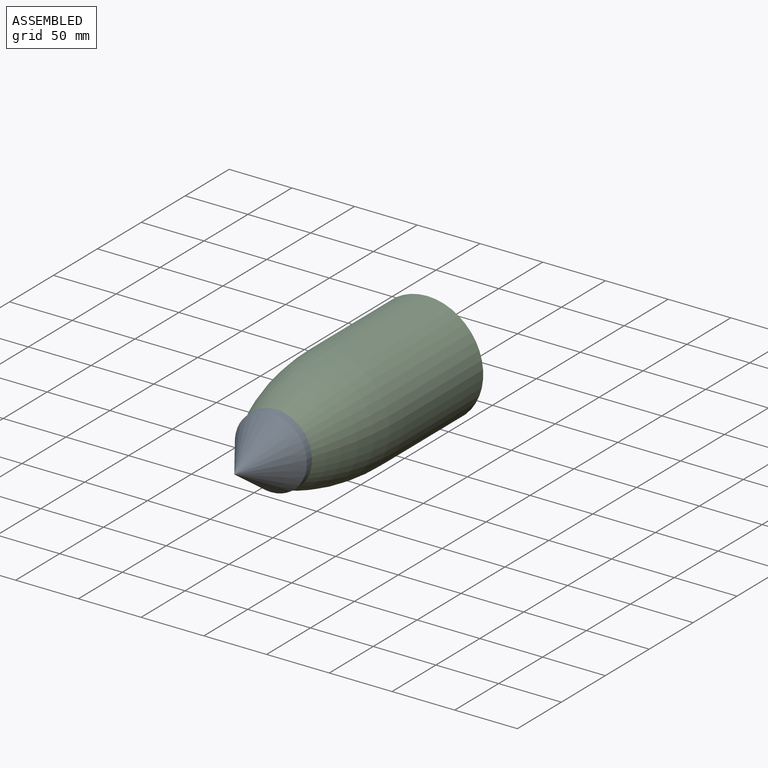
[diagram: assembled view]
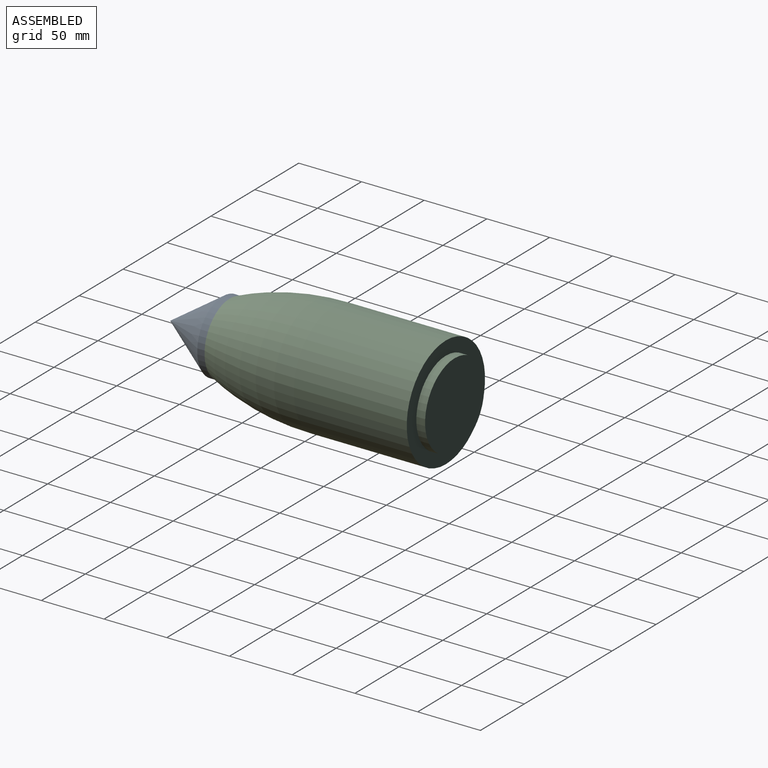
[diagram: assembled view, second angle]
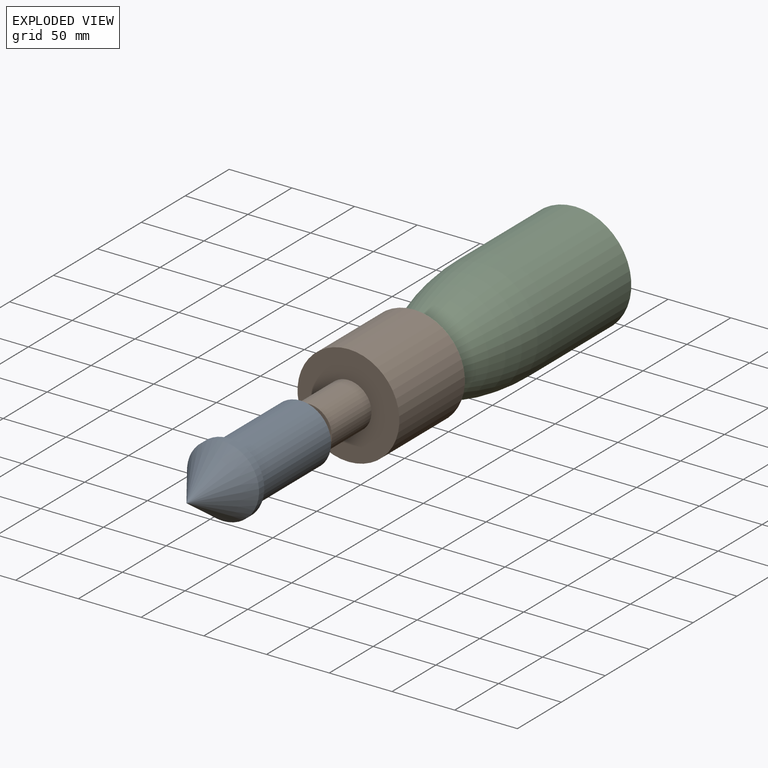
[diagram: exploded view]
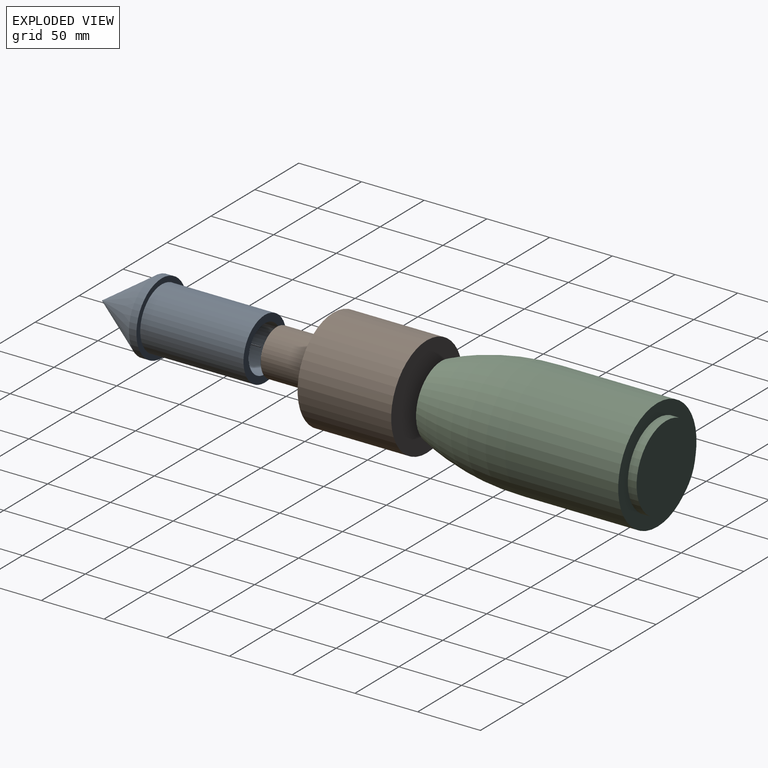
[diagram: exploded view, second angle]
ASSEMBLY  parts=3 mates=2
PART A: 7 faces, bbox 57.4x130x57.4 mm
  f0: plane 57.43x57.43mm, normal (0,1,0), area 725.9mm2, adj f1,f6
  f1: cylinder r=28.72mm len=57.43mm, axis (0,1,0), area 1082.5mm2, adj f0,f2
  f2: cone r=28.72mm half-angle=34.6deg, axis (0,1,0), area 4565.5mm2, adj f1
  f3: plane 36.72x36.72mm, normal (0,1,0), area 1059.2mm2, adj f4
  f4: cylinder r=18.36mm len=45mm, axis (0,1,0), area 5191.6mm2, adj f3,f5
  f5: plane 48.72x48.72mm, normal (0,1,0), area 805.3mm2, adj f4,f6
  f6: cylinder r=24.36mm len=82.31mm, axis (0,1,0), area 12599.2mm2, adj f0,f5
PART B: 5 faces, bbox 81.2x119.6x81.2 mm
  f0: plane 81.19x81.19mm, normal (0,-1,0), area 4117.7mm2, adj f1,f4
  f1: cylinder r=18.36mm len=45mm, axis (0,1,0), area 5191.6mm2, adj f0,f2
  f2: plane 36.72x36.72mm, normal (0,-1,0), area 1059.2mm2, adj f1
  f3: plane 81.19x81.19mm, normal (0,1,0), area 5176.8mm2, adj f4
  f4: cylinder r=40.59mm len=81.19mm, axis (0,1,0), area 19028.8mm2, adj f0,f3
PART C: 10 faces, bbox 89.2x179.3x89.2 mm
  f0: plane 81.19x81.19mm, normal (0,1,0), area 3312.3mm2, adj f1,f9
  f1: cylinder r=40.59mm len=81.19mm, axis (0,1,0), area 19028.8mm2, adj f0,f2
  f2: cone r=0mm half-angle=89.4deg, axis (0,-1,0), area 5177.1mm2, adj f1
  f3: plane 67.34x67.34mm, normal (0,1,0), area 3561.5mm2, adj f4
  f4: cylinder r=33.67mm len=67.34mm, axis (0,1,0), area 1480.9mm2, adj f3,f5
  f5: plane 89.19x89.19mm, normal (0,1,0), area 2685.8mm2, adj f4,f6
  f6: cylinder r=44.59mm len=90mm, axis (0,1,0), area 25217.1mm2, adj f5,f7
  f7: revolved ~89.19x89.19mm, area 20933.1mm2, adj f6,f8
  f8: plane 57.43x57.43mm, normal (0,-1,0), area 725.9mm2, adj f7,f9
  f9: cylinder r=24.36mm len=82.31mm, axis (0,1,0), area 12599.2mm2, adj f0,f8
PLACE A t=(182.82,-495.88,-45.22)mm
PLACE B t=(182.82,-495.88,-45.22)mm
PLACE C t=(182.82,-496.08,-45.22)mm
MATE fastened C.f1 <-> B.f1  axis (0,-1,0) through (182.82,-514.79,-45.22)mm
MATE fastened A.f1 <-> B.f1  axis (0,1,0) through (182.82,-634.39,-45.22)mm
